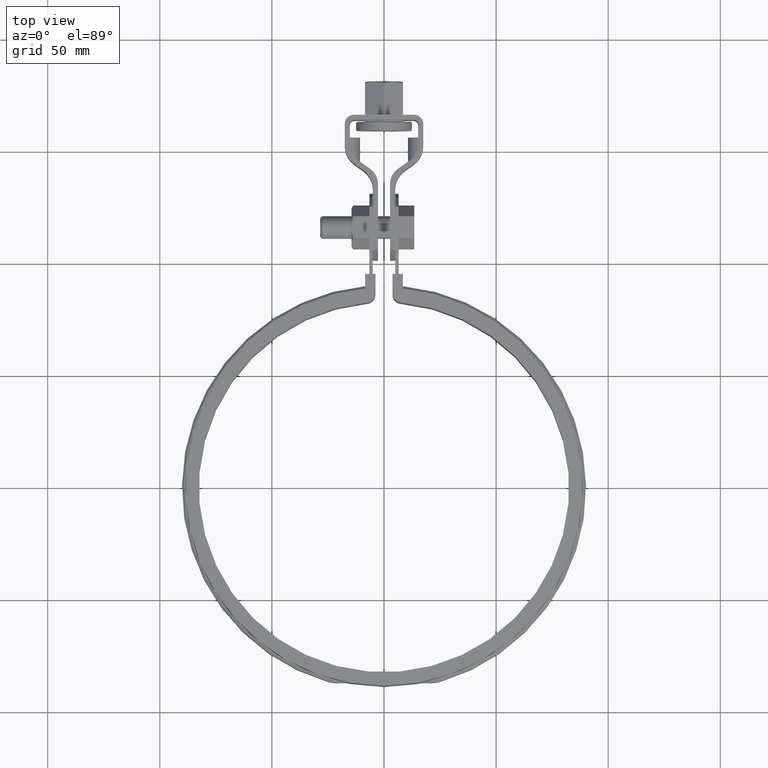
[diagram: clean part render]
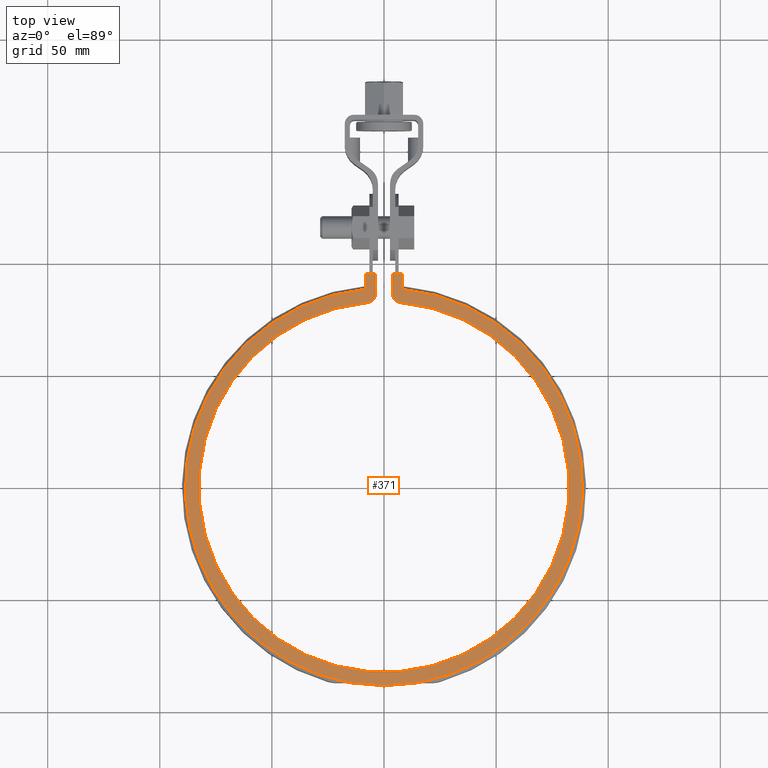
[diagram: same view with one face highlighted and labeled with its STEP entity id]
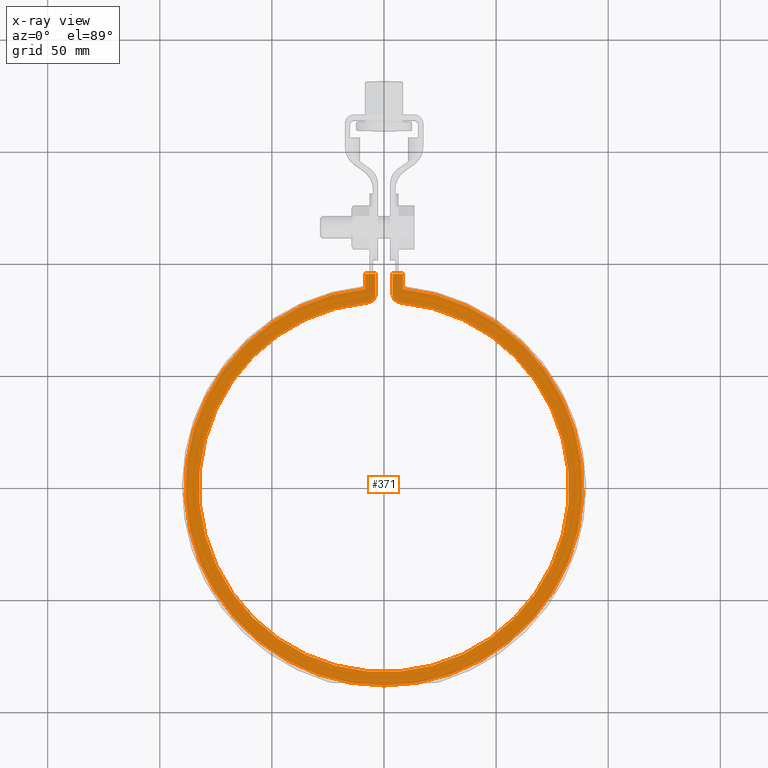
[diagram: x-ray of the same camera — body ghosted, the highlighted face saturated]
A machine part, top view. The second image highlights one B-rep face of the part: STEP entity #371.
The next image is the same camera in x-ray: the body ghosted, the highlighted face saturated — about 0% of this face is hidden behind the body in this view.
In plain terms, the highlighted planar face has unit normal (-0, 0, 1).
Its self-contained STEP definition (entity closure, byte-faithful):
#371 = ADVANCED_FACE( '', ( #615 ), #616, .T. );
#615 = FACE_OUTER_BOUND( '', #1750, .T. );
#616 = PLANE( '', #1751 );
#1750 = EDGE_LOOP( '', ( #3993, #3994, #3995, #3996, #3997, #3998, #3999, #4000, #4001, #4002 ) );
#1751 = AXIS2_PLACEMENT_3D( '', #4003, #4004, #4005 );
#3993 = ORIENTED_EDGE( '', *, *, #5053, .T. );
#3994 = ORIENTED_EDGE( '', *, *, #5038, .T. );
#3995 = ORIENTED_EDGE( '', *, *, #5120, .T. );
#3996 = ORIENTED_EDGE( '', *, *, #5123, .T. );
#3997 = ORIENTED_EDGE( '', *, *, #5126, .T. );
#3998 = ORIENTED_EDGE( '', *, *, #5129, .T. );
#3999 = ORIENTED_EDGE( '', *, *, #5132, .T. );
#4000 = ORIENTED_EDGE( '', *, *, #5113, .T. );
#4001 = ORIENTED_EDGE( '', *, *, #5140, .T. );
#4002 = ORIENTED_EDGE( '', *, *, #5144, .T. );
#4003 = CARTESIAN_POINT( '', ( 7.80000000000001, 86.2480144698996, 1.50000000000000 ) );
#4004 = DIRECTION( '', ( -1.16187428350752E-033, 2.54514470950044E-019, 1.00000000000000 ) );
#4005 = DIRECTION( '', ( 0.000000000000000, 1.00000000000000, -2.54514470950044E-019 ) );
#5038 = EDGE_CURVE( '', #5558, #5559, #5560, .T. );
#5053 = EDGE_CURVE( '', #5588, #5558, #5589, .T. );
#5113 = EDGE_CURVE( '', #5689, #5690, #5691, .T. );
#5120 = EDGE_CURVE( '', #5559, #5702, #5703, .T. );
#5123 = EDGE_CURVE( '', #5702, #5707, #5708, .T. );
#5126 = EDGE_CURVE( '', #5707, #5712, #5713, .T. );
#5129 = EDGE_CURVE( '', #5712, #5717, #5718, .T. );
#5132 = EDGE_CURVE( '', #5717, #5689, #5722, .T. );
#5140 = EDGE_CURVE( '', #5690, #5735, #5737, .T. );
#5144 = EDGE_CURVE( '', #5735, #5588, #5743, .T. );
#5558 = VERTEX_POINT( '', #7370 );
#5559 = VERTEX_POINT( '', #7371 );
#5560 = LINE( '', #7372, #7373 );
#5588 = VERTEX_POINT( '', #7419 );
#5589 = LINE( '', #7420, #7421 );
#5689 = VERTEX_POINT( '', #8546 );
#5690 = VERTEX_POINT( '', #8547 );
#5691 = LINE( '', #8548, #8549 );
#5702 = VERTEX_POINT( '', #8566 );
#5703 = LINE( '', #8567, #8568 );
#5707 = VERTEX_POINT( '', #8574 );
#5708 = CIRCLE( '', #8575, 3.99999999999999 );
#5712 = VERTEX_POINT( '', #8580 );
#5713 = CIRCLE( '', #8581, 82.5999999999999 );
#5717 = VERTEX_POINT( '', #8586 );
#5718 = CIRCLE( '', #8587, 4.00000000000000 );
#5722 = LINE( '', #8592, #8593 );
#5735 = VERTEX_POINT( '', #8616 );
#5737 = LINE( '', #8619, #8620 );
#5743 = CIRCLE( '', #8628, 88.6000000000001 );
#7370 = CARTESIAN_POINT( '', ( 8.39999999999999, 95.1000000000000, 1.50000000000000 ) );
#7371 = CARTESIAN_POINT( '', ( 3.80000000000002, 95.1000000000000, 1.50000000000000 ) );
#7372 = CARTESIAN_POINT( '', ( 8.39999999999999, 95.1000000000000, 1.50000000000000 ) );
#7373 = VECTOR( '', #9584, 1000.00000000000 );
#7419 = CARTESIAN_POINT( '', ( 8.39999999999998, 88.2009070248147, 1.50000000000000 ) );
#7420 = CARTESIAN_POINT( '', ( 8.40000000000000, 88.2009070248147, 1.50000000000000 ) );
#7421 = VECTOR( '', #9597, 1000.00000000000 );
#8546 = CARTESIAN_POINT( '', ( -3.80000000000000, 95.1000000000000, 1.50000000000000 ) );
#8547 = CARTESIAN_POINT( '', ( -8.40000000000000, 95.1000000000000, 1.50000000000000 ) );
#8548 = CARTESIAN_POINT( '', ( -3.80000000000000, 95.1000000000000, 1.50000000000000 ) );
#8549 = VECTOR( '', #9653, 1000.00000000000 );
#8566 = CARTESIAN_POINT( '', ( 3.80000000000002, 86.2480144698996, 1.50000000000000 ) );
#8567 = CARTESIAN_POINT( '', ( 3.80000000000002, 95.1000000000001, 1.50000000000000 ) );
#8568 = VECTOR( '', #9660, 1000.00000000000 );
#8574 = CARTESIAN_POINT( '', ( 7.43972286374133, 82.2642724620520, 1.50000000000000 ) );
#8575 = AXIS2_PLACEMENT_3D( '', #9663, #9664, #9665 );
#8580 = CARTESIAN_POINT( '', ( -7.43972286374150, 82.2642724620521, 1.50000000000000 ) );
#8581 = AXIS2_PLACEMENT_3D( '', #9670, #9671, #9672 );
#8586 = CARTESIAN_POINT( '', ( -3.80000000000000, 86.2480144698996, 1.50000000000000 ) );
#8587 = AXIS2_PLACEMENT_3D( '', #9677, #9678, #9679 );
#8592 = CARTESIAN_POINT( '', ( -3.80000000000000, 86.2480144698996, 1.50000000000000 ) );
#8593 = VECTOR( '', #9684, 1000.00000000000 );
#8616 = CARTESIAN_POINT( '', ( -8.40000000000000, 88.2009070248147, 1.50000000000000 ) );
#8619 = CARTESIAN_POINT( '', ( -8.40000000000000, 95.1000000000000, 1.50000000000000 ) );
#8620 = VECTOR( '', #9690, 1000.00000000000 );
#8628 = AXIS2_PLACEMENT_3D( '', #9696, #9697, #9698 );
#9584 = DIRECTION( '', ( -1.00000000000000, -2.22552369041245E-067, -8.55284707229502E-049 ) );
#9597 = DIRECTION( '', ( 6.93889390390723E-017, 1.00000000000000, 8.06212238293691E-050 ) );
#9653 = DIRECTION( '', ( -1.00000000000000, -2.22552369041245E-067, -8.55284707229502E-049 ) );
#9660 = DIRECTION( '', ( -6.10365667473322E-017, -1.00000000000000, -7.09168172573154E-050 ) );
#9663 = CARTESIAN_POINT( '', ( 7.80000000000001, 86.2480144698996, 1.50000000000000 ) );
#9664 = DIRECTION( '', ( -1.16187428350752E-033, 2.54514470950044E-019, 1.00000000000000 ) );
#9665 = DIRECTION( '', ( -1.00000000000000, -2.95713818577378E-052, -1.16187428350752E-033 ) );
#9670 = CARTESIAN_POINT( '', ( 8.67361737988404E-015, 2.35922392732846E-013, 1.50000000000000 ) );
#9671 = DIRECTION( '', ( 1.16187428350752E-033, -2.54514470950044E-019, -1.00000000000000 ) );
#9672 = DIRECTION( '', ( 1.00000000000000, 2.95713818577378E-052, 1.16187428350752E-033 ) );
#9677 = CARTESIAN_POINT( '', ( -7.80000000000000, 86.2480144698996, 1.50000000000000 ) );
#9678 = DIRECTION( '', ( -1.16187428350752E-033, 2.54514470950044E-019, 1.00000000000000 ) );
#9679 = DIRECTION( '', ( 1.00000000000000, 2.95713818577378E-052, 1.16187428350752E-033 ) );
#9684 = DIRECTION( '', ( 6.10365667473322E-017, 1.00000000000000, 7.09168172573155E-050 ) );
#9690 = DIRECTION( '', ( -6.93889390390723E-017, -1.00000000000000, -8.06212238293691E-050 ) );
#9696 = CARTESIAN_POINT( '', ( 6.93889390390723E-015, -2.77555756156289E-014, 1.50000000000000 ) );
#9697 = DIRECTION( '', ( -1.16187428350752E-033, 2.54514470950044E-019, 1.00000000000000 ) );
#9698 = DIRECTION( '', ( 1.00000000000000, 2.95713818577378E-052, 1.16187428350752E-033 ) );